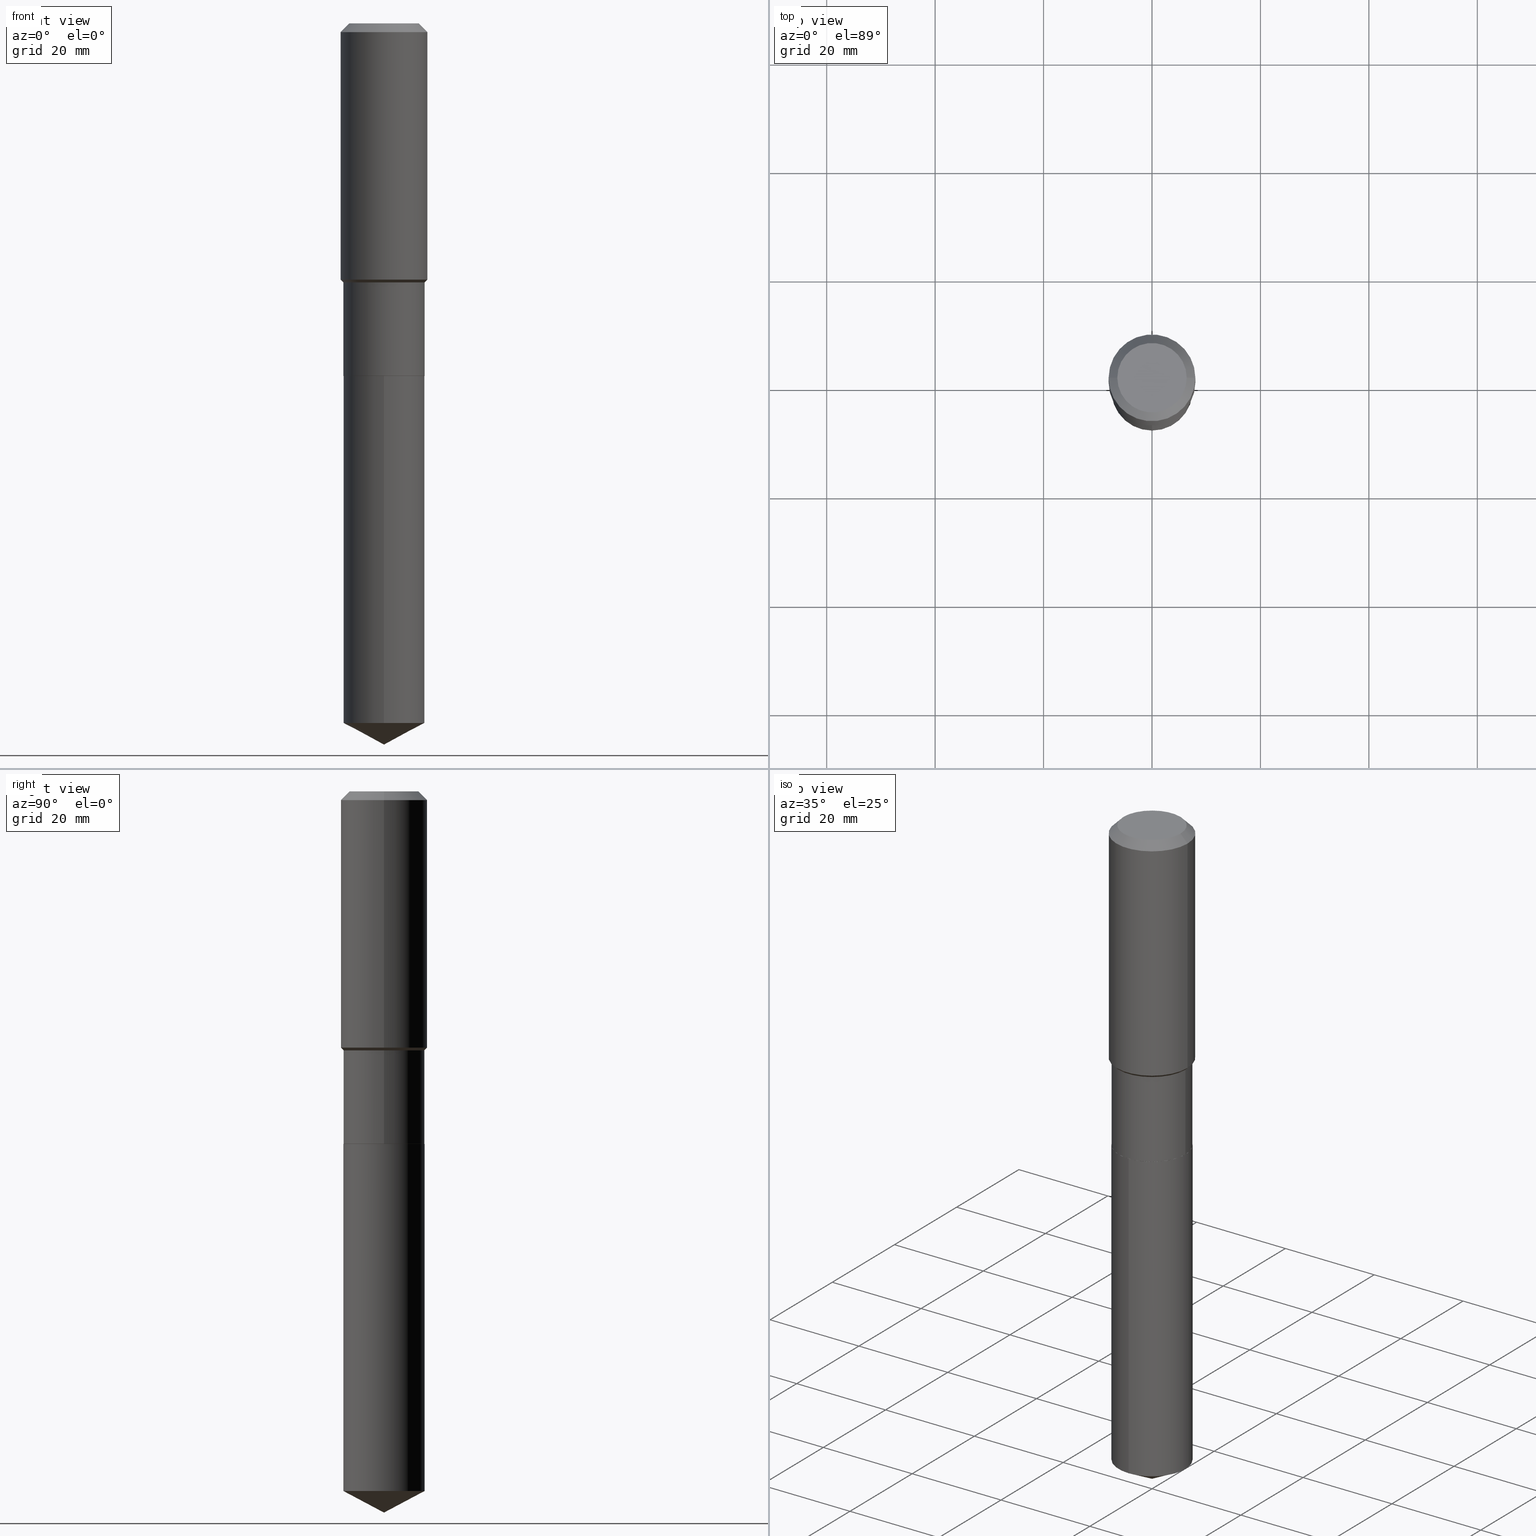
[diagram: canonical four-view strip — front | top / right | iso, engineering-drawing reading convention]
A machine part, canonical four-view strip (front | top / right | iso — engineering-drawing reading convention). The complete STEP part file that produces these views, byte-faithful:
ISO-10303-21;
HEADER;
FILE_DESCRIPTION (( 'STEP AP203' ),
    '1' );
FILE_NAME ('65099.STEP',
    '2024-04-24T20:43:30',
    ( '' ),
    ( '' ),
    'SwSTEP 2.0',
    'SolidWorks 2023',
    '' );
FILE_SCHEMA (( 'CONFIG_CONTROL_DESIGN' ));
ENDSEC;

DATA;
#1 = CARTESIAN_POINT ( 'NONE',  ( -0.2948000000000000065, -6.840369909212720342E-15, -2.559100000000000374 ) ) ;
#2 = ORIENTED_EDGE ( 'NONE', *, *, #388, .F. ) ;
#3 = DIRECTION ( 'NONE',  ( -2.445468806185136597E-29, 3.491481338843145583E-15, 1.000000000000000000 ) ) ;
#4 = VERTEX_POINT ( 'NONE', #316 ) ;
#5 = ADVANCED_BREP_SHAPE_REPRESENTATION ( '65099', ( #60, #220, #415 ), #402 ) ;
#6 = AXIS2_PLACEMENT_3D ( 'NONE', #478, #28, #325 ) ;
#7 = DIRECTION ( 'NONE',  ( -2.445468806185136877E-29, 3.491481338843145188E-15, 1.000000000000000000 ) ) ;
#8 = ORIENTED_EDGE ( 'NONE', *, *, #340, .T. ) ;
#9 = EDGE_CURVE ( 'NONE', #435, #481, #466, .T. ) ;
#10 = CARTESIAN_POINT ( 'NONE',  ( 1.540400801016026329E-30, -2.199284095337310135E-16, -0.06299000000000036514 ) ) ;
#11 = EDGE_LOOP ( 'NONE', ( #107, #312, #8, #486 ) ) ;
#12 = DIRECTION ( 'NONE',  ( 6.273719981627772387E-15, 0.8829475928589306521, 0.4694715627858840334 ) ) ;
#13 = PERSON_AND_ORGANIZATION_ROLE ( 'creator' ) ;
#14 = AXIS2_PLACEMENT_3D ( 'NONE', #136, #400, #256 ) ;
#15 = FACE_OUTER_BOUND ( 'NONE', #170, .T. ) ;
#16 = EDGE_CURVE ( 'NONE', #4, #154, #210, .T. ) ;
#17 = APPROVAL_STATUS ( 'not_yet_approved' ) ;
#18 = CARTESIAN_POINT ( 'NONE',  ( 0.2953000000000000624, -1.099537303228482880E-14, -2.558599999999999763 ) ) ;
#19 = CC_DESIGN_PERSON_AND_ORGANIZATION_ASSIGNMENT ( #54, #131, ( #105 ) ) ;
#20 = DIRECTION ( 'NONE',  ( 0.000000000000000000, 0.000000000000000000, 1.000000000000000000 ) ) ;
#21 = CARTESIAN_POINT ( 'NONE',  ( -0.2953000000000000069, 2.098232698699575898E-15, -1.452561532152273562E-29 ) ) ;
#22 = DIRECTION ( 'NONE',  ( -6.165590087286841551E-15, -0.8829475928589272105, 0.4694715627858901952 ) ) ;
#23 = AXIS2_PLACEMENT_3D ( 'NONE', #190, #193, #84 ) ;
#24 = LINE ( 'NONE', #70, #36 ) ;
#25 = ORIENTED_EDGE ( 'NONE', *, *, #128, .T. ) ;
#26 = CARTESIAN_POINT ( 'NONE',  ( 6.258199221908383945E-29, -8.935049894233496920E-15, -2.559100000000000374 ) ) ;
#27 = DATE_AND_TIME ( #58, #332 ) ;
#28 = DIRECTION ( 'NONE',  ( -2.445325234365100300E-29, 3.491686941861038348E-15, 1.000000000000000000 ) ) ;
#29 = CONICAL_SURFACE ( 'NONE', #336, 0.3149500000000000077, 0.7853981633974452814 ) ;
#30 = DIRECTION ( 'NONE',  ( 1.000000000000000000, -6.982962677686266711E-15, 4.876176775795935793E-29 ) ) ;
#31 = ORIENTED_EDGE ( 'NONE', *, *, #71, .T. ) ;
#32 = CARTESIAN_POINT ( 'NONE',  ( 0.000000000000000000, 0.000000000000000000, 0.000000000000000000 ) ) ;
#33 = EDGE_CURVE ( 'NONE', #154, #4, #72, .T. ) ;
#34 = CYLINDRICAL_SURFACE ( 'NONE', #276, 0.3149500000000001743 ) ;
#35 = ORIENTED_EDGE ( 'NONE', *, *, #310, .F. ) ;
#36 = VECTOR ( 'NONE', #441, 39.37007874015748143 ) ;
#37 = APPROVAL_PERSON_ORGANIZATION ( #390, #108, #277 ) ;
#38 = CARTESIAN_POINT ( 'NONE',  ( 0.2519600000000000173, -2.054606664725195058E-15, 3.855188123729206640E-18 ) ) ;
#39 = EDGE_CURVE ( 'NONE', #179, #227, #291, .T. ) ;
#40 = ORIENTED_EDGE ( 'NONE', *, *, #280, .F. ) ;
#41 = CC_DESIGN_SECURITY_CLASSIFICATION ( #105, ( #117 ) ) ;
#42 = DIRECTION ( 'NONE',  ( -2.445468806185136597E-29, 3.491481338843145583E-15, 1.000000000000000000 ) ) ;
#43 = ORIENTED_EDGE ( 'NONE', *, *, #205, .F. ) ;
#44 = DIRECTION ( 'NONE',  ( 1.000000000000000000, -6.982962677686264344E-15, 0.000000000000000000 ) ) ;
#45 = ORIENTED_EDGE ( 'NONE', *, *, #235, .T. ) ;
#46 = EDGE_CURVE ( 'NONE', #114, #374, #487, .T. ) ;
#47 = CONICAL_SURFACE ( 'NONE', #111, 0.2948000000000000065, 0.7853981633967653808 ) ;
#48 = FACE_OUTER_BOUND ( 'NONE', #473, .T. ) ;
#49 = ORIENTED_EDGE ( 'NONE', *, *, #46, .F. ) ;
#50 =( NAMED_UNIT ( * ) SI_UNIT ( $, .STERADIAN. ) SOLID_ANGLE_UNIT ( ) );
#51 = CARTESIAN_POINT ( 'NONE',  ( 0.2952999999999999514, -8.625704647611984399E-15, -1.879900000000000349 ) ) ;
#52 =( LENGTH_UNIT ( ) NAMED_UNIT ( * ) SI_UNIT ( $, .METRE. ) );
#53 = CARTESIAN_POINT ( 'NONE',  ( 4.549183346705900762E-29, -6.495028160582961591E-15, -1.860250000000000181 ) ) ;
#54 = PERSON_AND_ORGANIZATION ( #279, #479 ) ;
#55 = AXIS2_PLACEMENT_3D ( 'NONE', #53, #322, #468 ) ;
#56 = CARTESIAN_POINT ( 'NONE',  ( -0.2519600000000000173, 1.869391481036695286E-15, 3.855188123703182704E-18 ) ) ;
#57 = LOCAL_TIME ( 16, 43, 30.00000000000000000, #129 ) ;
#58 = CALENDAR_DATE ( 2024, 24, 4 ) ;
#59 = DIRECTION ( 'NONE',  ( -2.445468806185136597E-29, 3.491481338843145583E-15, 1.000000000000000000 ) ) ;
#60 = MANIFOLD_SOLID_BREP ( 'Body-Move/Copy2[1]', #353 ) ;
#61 = LINE ( 'NONE', #320, #103 ) ;
#62 = CC_DESIGN_PERSON_AND_ORGANIZATION_ASSIGNMENT ( #469, #122, ( #117 ) ) ;
#63 = CARTESIAN_POINT ( 'NONE',  ( 6.258199221908382824E-29, -8.935049894233495342E-15, -2.559099999999999930 ) ) ;
#64 = CIRCLE ( 'NONE', #455, 0.2519600000000000173 ) ;
#65 = CIRCLE ( 'NONE', #23, 0.2953000000000000069 ) ;
#66 = DIRECTION ( 'NONE',  ( 1.000000000000000000, -6.982962677686269077E-15, 0.000000000000000000 ) ) ;
#67 = ORIENTED_EDGE ( 'NONE', *, *, #235, .F. ) ;
#68 = APPROVAL_DATE_TIME ( #27, #425 ) ;
#69 = CYLINDRICAL_SURFACE ( 'NONE', #195, 0.2953000000000000069 ) ;
#70 = CARTESIAN_POINT ( 'NONE',  ( 2.098232698699638218E-15, 0.2952999999999910696, -2.559100000000001263 ) ) ;
#71 = EDGE_CURVE ( 'NONE', #179, #121, #427, .T. ) ;
#72 = CIRCLE ( 'NONE', #171, 0.2953000000000000069 ) ;
#73 = DIRECTION ( 'NONE',  ( 1.000000000000000000, -6.982962677686265922E-15, 0.000000000000000000 ) ) ;
#74 = ADVANCED_FACE ( 'NONE', ( #349 ), #146, .T. ) ;
#75 = DIRECTION ( 'NONE',  ( 1.000000000000000000, -6.982962677686266711E-15, 0.000000000000000000 ) ) ;
#76 = VERTEX_POINT ( 'NONE', #56 ) ;
#77 = EDGE_CURVE ( 'NONE', #259, #158, #61, .T. ) ;
#78 = CARTESIAN_POINT ( 'NONE',  ( 1.540400801016026329E-30, -2.199284095337310135E-16, -0.06299000000000036514 ) ) ;
#79 = ORIENTED_EDGE ( 'NONE', *, *, #438, .F. ) ;
#80 = AXIS2_PLACEMENT_3D ( 'NONE', #183, #176, #174 ) ;
#81 = AXIS2_PLACEMENT_3D ( 'NONE', #338, #306, #410 ) ;
#82 = DIRECTION ( 'NONE',  ( 2.445468806185136597E-29, -3.491481338843145583E-15, -1.000000000000000000 ) ) ;
#83 = EDGE_LOOP ( 'NONE', ( #462, #149, #161 ) ) ;
#84 = DIRECTION ( 'NONE',  ( -6.982962677686266711E-15, -1.000000000000000000, 3.700437512582815297E-15 ) ) ;
#85 = EDGE_LOOP ( 'NONE', ( #490, #222, #216, #151 ) ) ;
#86 = ADVANCED_FACE ( 'NONE', ( #130 ), #470, .F. ) ;
#87 = DIRECTION ( 'NONE',  ( 1.000000000000000000, -6.982962677686266711E-15, 4.876115136096691995E-29 ) ) ;
#88 = EDGE_LOOP ( 'NONE', ( #474, #191, #484, #314 ) ) ;
#89 = AXIS2_PLACEMENT_3D ( 'NONE', #120, #343, #153 ) ;
#90 = DIRECTION ( 'NONE',  ( 1.000000000000000000, -6.982962677686266711E-15, 0.000000000000000000 ) ) ;
#91 = APPROVAL_DATE_TIME ( #421, #108 ) ;
#92 = DIRECTION ( 'NONE',  ( -0.7071067811865453523, 2.468850131082234184E-15, -0.7071067811865496822 ) ) ;
#93 =( NAMED_UNIT ( * ) PLANE_ANGLE_UNIT ( ) SI_UNIT ( $, .RADIAN. ) );
#94 = DIRECTION ( 'NONE',  ( -2.445325234365100300E-29, 3.491686941861038348E-15, 1.000000000000000000 ) ) ;
#95 = CALENDAR_DATE ( 2024, 24, 4 ) ;
#96 = AXIS2_PLACEMENT_3D ( 'NONE', #248, #97, #134 ) ;
#97 = DIRECTION ( 'NONE',  ( -2.445325234365100300E-29, 3.491686941861038348E-15, 1.000000000000000000 ) ) ;
#98 = PERSON_AND_ORGANIZATION ( #279, #479 ) ;
#99 = DIRECTION ( 'NONE',  ( -2.445468806185136877E-29, 3.491481338843145188E-15, 1.000000000000000000 ) ) ;
#100 = EDGE_CURVE ( 'NONE', #450, #121, #265, .T. ) ;
#101 = FACE_OUTER_BOUND ( 'NONE', #458, .T. ) ;
#102 = DIRECTION ( 'NONE',  ( -2.445468806185136597E-29, 3.491481338843145583E-15, 1.000000000000000000 ) ) ;
#103 = VECTOR ( 'NONE', #207, 39.37007874015748143 ) ;
#104 = VECTOR ( 'NONE', #341, 39.37007874015748143 ) ;
#105 = SECURITY_CLASSIFICATION ( '', '', #313 ) ;
#106 = CARTESIAN_POINT ( 'NONE',  ( 0.2948000000000000065, -1.099362729161540808E-14, -2.559100000000000374 ) ) ;
#107 = ORIENTED_EDGE ( 'NONE', *, *, #471, .F. ) ;
#108 = APPROVAL ( #348, 'UNSPECIFIED' ) ;
#109 = CARTESIAN_POINT ( 'NONE',  ( 6.258199221908383945E-29, -8.935049894233496920E-15, -2.559100000000000374 ) ) ;
#110 = CARTESIAN_POINT ( 'NONE',  ( 6.258199221908382824E-29, -8.935049894233495342E-15, -2.559099999999999930 ) ) ;
#111 = AXIS2_PLACEMENT_3D ( 'NONE', #255, #404, #366 ) ;
#112 = CARTESIAN_POINT ( 'NONE',  ( 4.597236808747439228E-29, -6.563635768891230231E-15, -1.879900000000000349 ) ) ;
#113 = LINE ( 'NONE', #228, #354 ) ;
#114 = VERTEX_POINT ( 'NONE', #51 ) ;
#115 = CARTESIAN_POINT ( 'NONE',  ( 4.549183346705900762E-29, -6.495028160582961591E-15, -1.860250000000000181 ) ) ;
#116 = EDGE_LOOP ( 'NONE', ( #123, #219 ) ) ;
#117 = PRODUCT_DEFINITION_FORMATION_WITH_SPECIFIED_SOURCE ( 'ANY', '', #242, .NOT_KNOWN. ) ;
#118 = FACE_OUTER_BOUND ( 'NONE', #83, .T. ) ;
#119 = ORIENTED_EDGE ( 'NONE', *, *, #16, .T. ) ;
#120 = CARTESIAN_POINT ( 'NONE',  ( 1.242062961135545756E-28, -1.773440198800382696E-14, -5.079186204830366869 ) ) ;
#121 = VERTEX_POINT ( 'NONE', #391 ) ;
#122 = PERSON_AND_ORGANIZATION_ROLE ( 'design_supplier' ) ;
#123 = ORIENTED_EDGE ( 'NONE', *, *, #477, .T. ) ;
#124 = EDGE_CURVE ( 'NONE', #435, #169, #351, .T. ) ;
#125 = AXIS2_PLACEMENT_3D ( 'NONE', #230, #419, #87 ) ;
#126 = APPLICATION_PROTOCOL_DEFINITION ( 'international standard', 'config_control_design', 1994, #249 ) ;
#127 = CARTESIAN_POINT ( 'NONE',  ( -0.3149500000000000077, 1.979355685803558833E-15, -0.06299000000000036514 ) ) ;
#128 = EDGE_CURVE ( 'NONE', #76, #121, #318, .T. ) ;
#129 = COORDINATED_UNIVERSAL_TIME_OFFSET ( 5, 0, .BEHIND. ) ;
#130 = FACE_OUTER_BOUND ( 'NONE', #116, .T. ) ;
#131 = PERSON_AND_ORGANIZATION_ROLE ( 'classification_officer' ) ;
#132 = LINE ( 'NONE', #21, #155 ) ;
#133 = CIRCLE ( 'NONE', #368, 0.2948000000000000065 ) ;
#134 = DIRECTION ( 'NONE',  ( -6.982962677686266711E-15, -1.000000000000000000, 3.700437512582815297E-15 ) ) ;
#135 = DIRECTION ( 'NONE',  ( -2.445325234365100300E-29, 3.491686941861038348E-15, 1.000000000000000000 ) ) ;
#136 = CARTESIAN_POINT ( 'NONE',  ( 0.000000000000000000, 0.000000000000000000, 0.000000000000000000 ) ) ;
#137 = ORIENTED_EDGE ( 'NONE', *, *, #167, .T. ) ;
#138 = DIRECTION ( 'NONE',  ( -2.445468806185136597E-29, 3.491481338843145583E-15, 1.000000000000000000 ) ) ;
#139 = VECTOR ( 'NONE', #12, 39.37007874015748854 ) ;
#140 = FACE_OUTER_BOUND ( 'NONE', #181, .T. ) ;
#141 = DIRECTION ( 'NONE',  ( -2.445468806185136597E-29, 3.491481338843145583E-15, 1.000000000000000000 ) ) ;
#142 = PRODUCT_DEFINITION_SHAPE ( 'NONE', 'NONE',  #397 ) ;
#143 = CARTESIAN_POINT ( 'NONE',  ( 2.098232698699700538E-15, 0.2952999999999824099, -5.079186204830368645 ) ) ;
#144 = EDGE_CURVE ( 'NONE', #344, #450, #240, .T. ) ;
#145 = ORIENTED_EDGE ( 'NONE', *, *, #272, .T. ) ;
#146 = CONICAL_SURFACE ( 'NONE', #422, 0.2952999999999999514, 0.7853981633974509435 ) ;
#147 = VECTOR ( 'NONE', #148, 39.37007874015748143 ) ;
#148 = DIRECTION ( 'NONE',  ( -0.7071067811860646257, 7.493145998868609200E-15, 0.7071067811870304087 ) ) ;
#149 = ORIENTED_EDGE ( 'NONE', *, *, #124, .T. ) ;
#150 = FACE_OUTER_BOUND ( 'NONE', #88, .T. ) ;
#151 = ORIENTED_EDGE ( 'NONE', *, *, #340, .F. ) ;
#152 = ADVANCED_FACE ( 'NONE', ( #15 ), #165, .T. ) ;
#153 = DIRECTION ( 'NONE',  ( -6.982962677686266711E-15, -1.000000000000000000, 3.700437512582815297E-15 ) ) ;
#154 = VERTEX_POINT ( 'NONE', #355 ) ;
#155 = VECTOR ( 'NONE', #284, 39.37007874015748143 ) ;
#156 = CIRCLE ( 'NONE', #394, 0.3149500000000000077 ) ;
#157 = CARTESIAN_POINT ( 'NONE',  ( -0.2952999999999999514, -5.650237262528075742E-15, -1.879900000000000349 ) ) ;
#158 = VERTEX_POINT ( 'NONE', #18 ) ;
#159 = CC_DESIGN_APPROVAL ( #425, ( #105 ) ) ;
#160 = DATE_AND_TIME ( #239, #57 ) ;
#161 = ORIENTED_EDGE ( 'NONE', *, *, #475, .F. ) ;
#162 = CARTESIAN_POINT ( 'NONE',  ( -4.713871149261284790E-47, 6.730158695841843144E-33, 1.927594061857935750E-18 ) ) ;
#163 = EDGE_CURVE ( 'NONE', #363, #374, #132, .T. ) ;
#164 = COORDINATED_UNIVERSAL_TIME_OFFSET ( 5, 0, .BEHIND. ) ;
#165 = CYLINDRICAL_SURFACE ( 'NONE', #345, 0.2953000000000000069 ) ;
#166 = APPROVAL_PERSON_ORGANIZATION ( #398, #214, #429 ) ;
#167 = EDGE_CURVE ( 'NONE', #158, #363, #201, .T. ) ;
#168 = CALENDAR_DATE ( 2024, 24, 4 ) ;
#169 = VERTEX_POINT ( 'NONE', #143 ) ;
#170 = EDGE_LOOP ( 'NONE', ( #418, #339, #229, #2 ) ) ;
#171 = AXIS2_PLACEMENT_3D ( 'NONE', #287, #135, #399 ) ;
#172 = ORIENTED_EDGE ( 'NONE', *, *, #451, .F. ) ;
#173 = CARTESIAN_POINT ( 'NONE',  ( -0.3149500000000002298, -4.257173814306524817E-15, -1.860250000000000181 ) ) ;
#174 = DIRECTION ( 'NONE',  ( 1.000000000000000000, -6.982962677686269077E-15, 0.000000000000000000 ) ) ;
#175 = ORIENTED_EDGE ( 'NONE', *, *, #124, .F. ) ;
#176 = DIRECTION ( 'NONE',  ( -2.445468806185136597E-29, 3.491481338843145583E-15, 1.000000000000000000 ) ) ;
#177 = AXIS2_PLACEMENT_3D ( 'NONE', #430, #59, #66 ) ;
#178 = CC_DESIGN_APPROVAL ( #108, ( #397 ) ) ;
#179 = VERTEX_POINT ( 'NONE', #173 ) ;
#180 = DIRECTION ( 'NONE',  ( 2.445325234365099459E-29, -3.491686941861038743E-15, -1.000000000000000000 ) ) ;
#181 = EDGE_LOOP ( 'NONE', ( #137, #200, #49, #172 ) ) ;
#182 = ADVANCED_FACE ( 'NONE', ( #362 ), #252, .T. ) ;
#183 = CARTESIAN_POINT ( 'NONE',  ( 6.256976487505290023E-29, -8.933304153564073050E-15, -2.558599999999999763 ) ) ;
#184 = LINE ( 'NONE', #382, #187 ) ;
#185 = EDGE_LOOP ( 'NONE', ( #175, #370, #327 ) ) ;
#186 = CONICAL_SURFACE ( 'NONE', #212, 0.2952999999999999514, 0.7853981633974509435 ) ;
#187 = VECTOR ( 'NONE', #373, 39.37007874015748143 ) ;
#188 = LINE ( 'NONE', #1, #147 ) ;
#189 = EDGE_LOOP ( 'NONE', ( #420, #305, #385, #412 ) ) ;
#190 = CARTESIAN_POINT ( 'NONE',  ( 1.242062961135545756E-28, -1.773440198800382696E-14, -5.079186204830366869 ) ) ;
#191 = ORIENTED_EDGE ( 'NONE', *, *, #144, .T. ) ;
#192 = EDGE_CURVE ( 'NONE', #344, #76, #64, .T. ) ;
#193 = DIRECTION ( 'NONE',  ( -2.445325234365100300E-29, 3.491686941861038348E-15, 1.000000000000000000 ) ) ;
#194 = ORIENTED_EDGE ( 'NONE', *, *, #272, .F. ) ;
#195 = AXIS2_PLACEMENT_3D ( 'NONE', #217, #334, #485 ) ;
#196 = ORIENTED_EDGE ( 'NONE', *, *, #392, .F. ) ;
#197 = CC_DESIGN_DATE_AND_TIME_ASSIGNMENT ( #160, #199, ( #397 ) ) ;
#198 = CARTESIAN_POINT ( 'NONE',  ( 1.280495326505732203E-28, -1.828211884760659046E-14, -5.236200000000000188 ) ) ;
#199 = DATE_TIME_ROLE ( 'creation_date' ) ;
#200 = ORIENTED_EDGE ( 'NONE', *, *, #163, .T. ) ;
#201 = CIRCLE ( 'NONE', #177, 0.2953000000000000624 ) ;
#202 = CONICAL_SURFACE ( 'NONE', #437, 0.3149500000000000077, 0.7853981633974452814 ) ;
#203 = APPROVAL_STATUS ( 'not_yet_approved' ) ;
#204 = CARTESIAN_POINT ( 'NONE',  ( 6.258199221908382824E-29, -8.935049894233495342E-15, -2.559099999999999930 ) ) ;
#205 = EDGE_CURVE ( 'NONE', #169, #154, #24, .T. ) ;
#206 = PERSON_AND_ORGANIZATION ( #279, #479 ) ;
#207 = DIRECTION ( 'NONE',  ( 0.7071067811860646257, -2.468850131077198884E-15, 0.7071067811870304087 ) ) ;
#208 = COORDINATED_UNIVERSAL_TIME_OFFSET ( 5, 0, .BEHIND. ) ;
#209 = DIRECTION ( 'NONE',  ( -2.445468806185136597E-29, 3.491481338843145583E-15, 1.000000000000000000 ) ) ;
#210 = CIRCLE ( 'NONE', #96, 0.2953000000000000069 ) ;
#211 = ADVANCED_FACE ( 'NONE', ( #439 ), #483, .F. ) ;
#212 = AXIS2_PLACEMENT_3D ( 'NONE', #433, #102, #480 ) ;
#213 = LINE ( 'NONE', #434, #285 ) ;
#214 = APPROVAL ( #203, 'UNSPECIFIED' ) ;
#215 = FACE_OUTER_BOUND ( 'NONE', #383, .T. ) ;
#216 = ORIENTED_EDGE ( 'NONE', *, *, #365, .F. ) ;
#217 = CARTESIAN_POINT ( 'NONE',  ( 0.000000000000000000, 0.000000000000000000, 0.000000000000000000 ) ) ;
#218 = DIRECTION ( 'NONE',  ( -2.445468806185136597E-29, 3.491481338843145583E-15, 1.000000000000000000 ) ) ;
#219 = ORIENTED_EDGE ( 'NONE', *, *, #192, .T. ) ;
#220 = MANIFOLD_SOLID_BREP ( 'Body-Move/Copy2[2]', #384 ) ;
#221 = CYLINDRICAL_SURFACE ( 'NONE', #393, 0.2953000000000000069 ) ;
#222 = ORIENTED_EDGE ( 'NONE', *, *, #471, .T. ) ;
#223 = CARTESIAN_POINT ( 'NONE',  ( -0.2948000000000000065, -6.837720682038608352E-15, -2.559100000000000374 ) ) ;
#224 = ORIENTED_EDGE ( 'NONE', *, *, #451, .T. ) ;
#225 = DESIGN_CONTEXT ( 'detailed design', #324, 'design' ) ;
#226 = DIRECTION ( 'NONE',  ( -2.445325234365100300E-29, 3.491686941861038743E-15, 1.000000000000000000 ) ) ;
#227 = VERTEX_POINT ( 'NONE', #250 ) ;
#228 = CARTESIAN_POINT ( 'NONE',  ( 0.2953000000000000069, -2.062068878720754563E-15, 1.439935001892539937E-29 ) ) ;
#229 = ORIENTED_EDGE ( 'NONE', *, *, #16, .F. ) ;
#230 = CARTESIAN_POINT ( 'NONE',  ( -9.427742298522569579E-47, 1.346031739168368629E-32, 3.855188123715871501E-18 ) ) ;
#231 = EDGE_LOOP ( 'NONE', ( #35, #67 ) ) ;
#232 = CARTESIAN_POINT ( 'NONE',  ( -2.062068878720631106E-15, -0.2953000000000178260, -5.079186204830365980 ) ) ;
#233 = ORIENTED_EDGE ( 'NONE', *, *, #144, .F. ) ;
#234 = AXIS2_PLACEMENT_3D ( 'NONE', #245, #289, #282 ) ;
#235 = EDGE_CURVE ( 'NONE', #380, #259, #133, .T. ) ;
#236 = COORDINATED_UNIVERSAL_TIME_OFFSET ( 5, 0, .BEHIND. ) ;
#237 = DIRECTION ( 'NONE',  ( 2.438088387897960049E-29, -3.491481338843145188E-15, -1.000000000000000000 ) ) ;
#238 = APPROVAL_PERSON_ORGANIZATION ( #281, #425, #244 ) ;
#239 = CALENDAR_DATE ( 2024, 24, 4 ) ;
#240 = LINE ( 'NONE', #356, #465 ) ;
#241 = CALENDAR_DATE ( 2024, 24, 4 ) ;
#242 = PRODUCT ( '65099', '65099', '', ( #426 ) ) ;
#243 = DIRECTION ( 'NONE',  ( -6.982962677686266711E-15, -1.000000000000000000, 3.700437512582815297E-15 ) ) ;
#244 = APPROVAL_ROLE ( '' ) ;
#245 = CARTESIAN_POINT ( 'NONE',  ( 4.597236808747439228E-29, -6.563635768891230231E-15, -1.879900000000000349 ) ) ;
#246 = ADVANCED_FACE ( 'NONE', ( #476 ), #408, .T. ) ;
#247 = PERSON_AND_ORGANIZATION_ROLE ( 'creator' ) ;
#248 = CARTESIAN_POINT ( 'NONE',  ( 6.258199221908382824E-29, -8.935049894233495342E-15, -2.559099999999999930 ) ) ;
#249 = APPLICATION_CONTEXT ( 'configuration controlled 3d designs of mechanical parts and assemblies' ) ;
#250 = CARTESIAN_POINT ( 'NONE',  ( 0.3149500000000002298, -8.694312255920253039E-15, -1.860250000000000181 ) ) ;
#251 = ADVANCED_FACE ( 'NONE', ( #215 ), #257, .T. ) ;
#252 = CONICAL_SURFACE ( 'NONE', #275, 0.2948000000000000065, 0.7853981633967653808 ) ;
#253 = CARTESIAN_POINT ( 'NONE',  ( -9.427742298522569579E-47, 1.346031739168368629E-32, 3.855188123715871501E-18 ) ) ;
#254 = ADVANCED_FACE ( 'NONE', ( #407 ), #69, .T. ) ;
#255 = CARTESIAN_POINT ( 'NONE',  ( 6.258199221908383945E-29, -8.935049894233496920E-15, -2.559100000000000374 ) ) ;
#256 = DIRECTION ( 'NONE',  ( 1.000000000000000000, -6.982962677686265922E-15, 4.876176775795935232E-29 ) ) ;
#257 = CYLINDRICAL_SURFACE ( 'NONE', #14, 0.3149500000000001743 ) ;
#258 = CARTESIAN_POINT ( 'NONE',  ( 0.000000000000000000, 0.000000000000000000, 0.000000000000000000 ) ) ;
#259 = VERTEX_POINT ( 'NONE', #106 ) ;
#260 = DIRECTION ( 'NONE',  ( -2.445468806185136597E-29, 3.491481338843145583E-15, 1.000000000000000000 ) ) ;
#261 = ORIENTED_EDGE ( 'NONE', *, *, #365, .T. ) ;
#262 = UNCERTAINTY_MEASURE_WITH_UNIT (LENGTH_MEASURE( 1.000000000000000082E-05 ), #321, 'distance_accuracy_value', 'NONE');
#263 = FACE_OUTER_BOUND ( 'NONE', #231, .T. ) ;
#264 = EDGE_LOOP ( 'NONE', ( #271, #145, #224, #196 ) ) ;
#265 = CIRCLE ( 'NONE', #308, 0.3149500000000000077 ) ;
#266 = LOCAL_TIME ( 16, 43, 30.00000000000000000, #208 ) ;
#267 = LINE ( 'NONE', #379, #104 ) ;
#268 = ADVANCED_FACE ( 'NONE', ( #409 ), #221, .T. ) ;
#269 = ORIENTED_EDGE ( 'NONE', *, *, #477, .F. ) ;
#270 = DIRECTION ( 'NONE',  ( 1.000000000000000000, -6.982962677686265922E-15, 4.876176775795935232E-29 ) ) ;
#271 = ORIENTED_EDGE ( 'NONE', *, *, #163, .F. ) ;
#272 = EDGE_CURVE ( 'NONE', #363, #158, #401, .T. ) ;
#273 = DATE_TIME_ROLE ( 'classification_date' ) ;
#274 = EDGE_LOOP ( 'NONE', ( #119, #302 ) ) ;
#275 = AXIS2_PLACEMENT_3D ( 'NONE', #26, #138, #443 ) ;
#276 = AXIS2_PLACEMENT_3D ( 'NONE', #258, #42, #270 ) ;
#277 = APPROVAL_ROLE ( '' ) ;
#278 = CARTESIAN_POINT ( 'NONE',  ( 4.597236808747439228E-29, -6.563635768891230231E-15, -1.879900000000000349 ) ) ;
#279 = PERSON ( 'UNSPECIFIED', 'UNSPECIFIED', 'UNSPECIFIED', ('UNSPECIFIED'), ('UNSPECIFIED'), ('UNSPECIFIED') ) ;
#280 = EDGE_CURVE ( 'NONE', #227, #450, #213, .T. ) ;
#281 = PERSON_AND_ORGANIZATION ( #279, #479 ) ;
#282 = DIRECTION ( 'NONE',  ( 1.000000000000000000, -6.982962677686265133E-15, 0.000000000000000000 ) ) ;
#283 = ADVANCED_FACE ( 'NONE', ( #101 ), #47, .T. ) ;
#284 = DIRECTION ( 'NONE',  ( -2.445468806185136877E-29, 3.491481338843145188E-15, 1.000000000000000000 ) ) ;
#285 = VECTOR ( 'NONE', #326, 39.37007874015748143 ) ;
#286 = DIRECTION ( 'NONE',  ( 1.000000000000000000, 0.000000000000000000, 0.000000000000000000 ) ) ;
#287 = CARTESIAN_POINT ( 'NONE',  ( 6.258199221908382824E-29, -8.935049894233495342E-15, -2.559099999999999930 ) ) ;
#288 = SHAPE_DEFINITION_REPRESENTATION ( #142, #5 ) ;
#289 = DIRECTION ( 'NONE',  ( -2.445468806185136597E-29, 3.491481338843145583E-15, 1.000000000000000000 ) ) ;
#290 = DIRECTION ( 'NONE',  ( -6.982962677686266711E-15, -1.000000000000000000, 3.700437512582815297E-15 ) ) ;
#291 = CIRCLE ( 'NONE', #55, 0.3149500000000002298 ) ;
#292 = AXIS2_PLACEMENT_3D ( 'NONE', #112, #376, #489 ) ;
#293 = DIRECTION ( 'NONE',  ( 6.982962677686265922E-15, 1.000000000000000000, -3.491686941861038743E-15 ) ) ;
#294 = LOCAL_TIME ( 16, 43, 30.00000000000000000, #164 ) ;
#295 = ADVANCED_FACE ( 'NONE', ( #331 ), #186, .T. ) ;
#296 = DIRECTION ( 'NONE',  ( -2.445468806185136597E-29, 3.491481338843145583E-15, 1.000000000000000000 ) ) ;
#297 = DIRECTION ( 'NONE',  ( -2.445468806185136597E-29, 3.491481338843145583E-15, 1.000000000000000000 ) ) ;
#298 = CARTESIAN_POINT ( 'NONE',  ( 1.280421199218253984E-28, -1.828317116497276678E-14, -5.236200000000000188 ) ) ;
#299 = AXIS2_PLACEMENT_3D ( 'NONE', #449, #456, #447 ) ;
#300 = ORIENTED_EDGE ( 'NONE', *, *, #438, .T. ) ;
#301 = PLANE ( 'NONE',  #299 ) ;
#302 = ORIENTED_EDGE ( 'NONE', *, *, #33, .T. ) ;
#303 = CC_DESIGN_PERSON_AND_ORGANIZATION_ASSIGNMENT ( #98, #467, ( #242 ) ) ;
#304 = CARTESIAN_POINT ( 'NONE',  ( -2.062068878720691848E-15, -0.2953000000000089442, -2.559099999999999042 ) ) ;
#305 = ORIENTED_EDGE ( 'NONE', *, *, #39, .T. ) ;
#306 = DIRECTION ( 'NONE',  ( -2.445325234365100300E-29, 3.491686941861038348E-15, 1.000000000000000000 ) ) ;
#307 = ORIENTED_EDGE ( 'NONE', *, *, #357, .T. ) ;
#308 = AXIS2_PLACEMENT_3D ( 'NONE', #323, #209, #90 ) ;
#309 = CIRCLE ( 'NONE', #292, 0.2952999999999999514 ) ;
#310 = EDGE_CURVE ( 'NONE', #259, #380, #386, .T. ) ;
#311 = CARTESIAN_POINT ( 'NONE',  ( 1.540400801016026329E-30, -2.199284095337310135E-16, -0.06299000000000036514 ) ) ;
#312 = ORIENTED_EDGE ( 'NONE', *, *, #392, .T. ) ;
#313 = SECURITY_CLASSIFICATION_LEVEL ( 'unclassified' ) ;
#314 = ORIENTED_EDGE ( 'NONE', *, *, #128, .F. ) ;
#315 = APPLICATION_PROTOCOL_DEFINITION ( 'international standard', 'config_control_design', 1994, #324 ) ;
#316 = CARTESIAN_POINT ( 'NONE',  ( -2.062068878720691848E-15, -0.2953000000000089442, -2.559099999999999042 ) ) ;
#317 = VECTOR ( 'NONE', #226, 39.37007874015748143 ) ;
#318 = LINE ( 'NONE', #127, #436 ) ;
#319 = APPROVAL_DATE_TIME ( #350, #214 ) ;
#320 = CARTESIAN_POINT ( 'NONE',  ( 0.2948000000000000065, -1.099362729161540808E-14, -2.559100000000000374 ) ) ;
#321 =( CONVERSION_BASED_UNIT ( 'INCH', #464 ) LENGTH_UNIT ( ) NAMED_UNIT ( #406 ) );
#322 = DIRECTION ( 'NONE',  ( -2.445468806185136597E-29, 3.491481338843145583E-15, 1.000000000000000000 ) ) ;
#323 = CARTESIAN_POINT ( 'NONE',  ( 1.540400801016026329E-30, -2.199284095337310135E-16, -0.06299000000000036514 ) ) ;
#324 = APPLICATION_CONTEXT ( 'configuration controlled 3d designs of mechanical parts and assemblies' ) ;
#325 = DIRECTION ( 'NONE',  ( -6.982962677686265922E-15, -1.000000000000000000, 3.541896320645543908E-15 ) ) ;
#326 = DIRECTION ( 'NONE',  ( -2.445468806185136877E-29, 3.491481338843145188E-15, 1.000000000000000000 ) ) ;
#327 = ORIENTED_EDGE ( 'NONE', *, *, #440, .F. ) ;
#328 = ADVANCED_FACE ( 'NONE', ( #140 ), #371, .T. ) ;
#329 = AXIS2_PLACEMENT_3D ( 'NONE', #110, #180, #293 ) ;
#330 = CIRCLE ( 'NONE', #125, 0.2519600000000000173 ) ;
#331 = FACE_OUTER_BOUND ( 'NONE', #85, .T. ) ;
#332 = LOCAL_TIME ( 16, 43, 30.00000000000000000, #395 ) ;
#333 = DIRECTION ( 'NONE',  ( 1.000000000000000000, -6.982962677686266711E-15, 4.876115136096691995E-29 ) ) ;
#334 = DIRECTION ( 'NONE',  ( -2.445468806185136597E-29, 3.491481338843145583E-15, 1.000000000000000000 ) ) ;
#335 = DIRECTION ( 'NONE',  ( -1.000000000000000000, 6.982962677686266711E-15, 0.000000000000000000 ) ) ;
#336 = AXIS2_PLACEMENT_3D ( 'NONE', #311, #82, #459 ) ;
#337 = EDGE_LOOP ( 'NONE', ( #79, #45, #378, #194 ) ) ;
#338 = CARTESIAN_POINT ( 'NONE',  ( -8.346806761542085360E-28, 1.191853448307590878E-13, 34.13387874015747769 ) ) ;
#339 = ORIENTED_EDGE ( 'NONE', *, *, #205, .T. ) ;
#340 = EDGE_CURVE ( 'NONE', #114, #227, #184, .T. ) ;
#341 = DIRECTION ( 'NONE',  ( -0.7071067811865493491, 7.493145998870360471E-15, 0.7071067811865456854 ) ) ;
#342 = ORIENTED_EDGE ( 'NONE', *, *, #77, .F. ) ;
#343 = DIRECTION ( 'NONE',  ( -2.445325234365100300E-29, 3.491686941861038348E-15, 1.000000000000000000 ) ) ;
#344 = VERTEX_POINT ( 'NONE', #38 ) ;
#345 = AXIS2_PLACEMENT_3D ( 'NONE', #204, #94, #243 ) ;
#346 = CARTESIAN_POINT ( 'NONE',  ( -0.2953000000000000624, -5.650237262528074953E-15, -2.558599999999999763 ) ) ;
#347 = ORIENTED_EDGE ( 'NONE', *, *, #388, .T. ) ;
#348 = APPROVAL_STATUS ( 'not_yet_approved' ) ;
#349 = FACE_OUTER_BOUND ( 'NONE', #11, .T. ) ;
#350 = DATE_AND_TIME ( #241, #448 ) ;
#351 = LINE ( 'NONE', #198, #139 ) ;
#352 = ADVANCED_FACE ( 'NONE', ( #150 ), #202, .T. ) ;
#353 = CLOSED_SHELL ( 'NONE', ( #152, #413, #246, #268, #211 ) ) ;
#354 = VECTOR ( 'NONE', #7, 39.37007874015748143 ) ;
#355 = CARTESIAN_POINT ( 'NONE',  ( 2.098232698699700538E-15, 0.2952999999999910696, -2.559100000000001263 ) ) ;
#356 = CARTESIAN_POINT ( 'NONE',  ( 0.3149500000000000077, -2.380642253931875190E-15, -0.06299000000000036514 ) ) ;
#357 = EDGE_CURVE ( 'NONE', #121, #450, #156, .T. ) ;
#358 = PERSON_AND_ORGANIZATION ( #279, #479 ) ;
#359 = CARTESIAN_POINT ( 'NONE',  ( 1.280421199218253984E-28, -1.828317116497276678E-14, -5.236200000000000188 ) ) ;
#360 = VECTOR ( 'NONE', #99, 39.37007874015748143 ) ;
#361 = CIRCLE ( 'NONE', #89, 0.2953000000000000069 ) ;
#362 = FACE_OUTER_BOUND ( 'NONE', #337, .T. ) ;
#363 = VERTEX_POINT ( 'NONE', #346 ) ;
#364 = DIRECTION ( 'NONE',  ( -2.445325234365100300E-29, 3.491686941861038348E-15, 1.000000000000000000 ) ) ;
#365 = EDGE_CURVE ( 'NONE', #227, #179, #446, .T. ) ;
#366 = DIRECTION ( 'NONE',  ( 1.000000000000000000, -6.982962677686265922E-15, 0.000000000000000000 ) ) ;
#367 = ADVANCED_FACE ( 'NONE', ( #411 ), #34, .T. ) ;
#368 = AXIS2_PLACEMENT_3D ( 'NONE', #109, #141, #403 ) ;
#369 = CARTESIAN_POINT ( 'NONE',  ( 6.258199221908383945E-29, -8.935049894233496920E-15, -2.559100000000000374 ) ) ;
#370 = ORIENTED_EDGE ( 'NONE', *, *, #9, .T. ) ;
#371 = CYLINDRICAL_SURFACE ( 'NONE', #377, 0.2953000000000000069 ) ;
#372 = CC_DESIGN_DATE_AND_TIME_ASSIGNMENT ( #461, #273, ( #105 ) ) ;
#373 = DIRECTION ( 'NONE',  ( 0.7071067811865493491, -2.468850131082276388E-15, 0.7071067811865456854 ) ) ;
#374 = VERTEX_POINT ( 'NONE', #157 ) ;
#375 = AXIS2_PLACEMENT_3D ( 'NONE', #162, #237, #428 ) ;
#376 = DIRECTION ( 'NONE',  ( -2.445468806185136597E-29, 3.491481338843145583E-15, 1.000000000000000000 ) ) ;
#377 = AXIS2_PLACEMENT_3D ( 'NONE', #32, #296, #30 ) ;
#378 = ORIENTED_EDGE ( 'NONE', *, *, #77, .T. ) ;
#379 = CARTESIAN_POINT ( 'NONE',  ( -0.2952999999999999514, -4.465403070191654333E-15, -1.879900000000000349 ) ) ;
#380 = VERTEX_POINT ( 'NONE', #223 ) ;
#381 = ADVANCED_FACE ( 'NONE', ( #48 ), #29, .T. ) ;
#382 = CARTESIAN_POINT ( 'NONE',  ( 0.2952999999999999514, -8.625704647611984399E-15, -1.879900000000000349 ) ) ;
#383 = EDGE_LOOP ( 'NONE', ( #261, #31, #442, #40 ) ) ;
#384 = CLOSED_SHELL ( 'NONE', ( #283, #352, #251, #295, #328, #254, #74, #367, #381, #86, #444, #182 ) ) ;
#385 = ORIENTED_EDGE ( 'NONE', *, *, #280, .T. ) ;
#386 = CIRCLE ( 'NONE', #424, 0.2948000000000000065 ) ;
#387 = DIRECTION ( 'NONE',  ( 1.000000000000000000, -6.982962677686265133E-15, 0.000000000000000000 ) ) ;
#388 = EDGE_CURVE ( 'NONE', #481, #4, #414, .T. ) ;
#389 = DIRECTION ( 'NONE',  ( -2.445468806185136597E-29, 3.491481338843145583E-15, 1.000000000000000000 ) ) ;
#390 = PERSON_AND_ORGANIZATION ( #279, #479 ) ;
#391 = CARTESIAN_POINT ( 'NONE',  ( -0.3149500000000000077, -1.119623938781909738E-15, -0.06299000000000036514 ) ) ;
#392 = EDGE_CURVE ( 'NONE', #374, #114, #309, .T. ) ;
#393 = AXIS2_PLACEMENT_3D ( 'NONE', #63, #364, #290 ) ;
#394 = AXIS2_PLACEMENT_3D ( 'NONE', #10, #3, #75 ) ;
#395 = COORDINATED_UNIVERSAL_TIME_OFFSET ( 5, 0, .BEHIND. ) ;
#396 = DIRECTION ( 'NONE',  ( 0.7071067811865453523, -7.319954787623248157E-15, -0.7071067811865496822 ) ) ;
#397 = PRODUCT_DEFINITION ( 'UNKNOWN', '', #117, #225 ) ;
#398 = PERSON_AND_ORGANIZATION ( #279, #479 ) ;
#399 = DIRECTION ( 'NONE',  ( -6.982962677686266711E-15, -1.000000000000000000, 3.700437512582815297E-15 ) ) ;
#400 = DIRECTION ( 'NONE',  ( -2.445468806185136597E-29, 3.491481338843145583E-15, 1.000000000000000000 ) ) ;
#401 = CIRCLE ( 'NONE', #80, 0.2953000000000000624 ) ;
#402 =( GEOMETRIC_REPRESENTATION_CONTEXT ( 3 ) GLOBAL_UNCERTAINTY_ASSIGNED_CONTEXT ( ( #262 ) ) GLOBAL_UNIT_ASSIGNED_CONTEXT ( ( #321, #93, #50 ) ) REPRESENTATION_CONTEXT ( 'NONE', 'WORKASPACE' ) );
#403 = DIRECTION ( 'NONE',  ( 1.000000000000000000, -6.982962677686265922E-15, 0.000000000000000000 ) ) ;
#404 = DIRECTION ( 'NONE',  ( -2.445468806185136597E-29, 3.491481338843145583E-15, 1.000000000000000000 ) ) ;
#405 = ORIENTED_EDGE ( 'NONE', *, *, #440, .T. ) ;
#406 = DIMENSIONAL_EXPONENTS ( 1.000000000000000000, 0.000000000000000000, 0.000000000000000000, 0.000000000000000000, 0.000000000000000000, 0.000000000000000000, 0.000000000000000000 ) ;
#407 = FACE_OUTER_BOUND ( 'NONE', #264, .T. ) ;
#408 = CONICAL_SURFACE ( 'NONE', #6, 74.04434902938389484, 1.082104136236488490 ) ;
#409 = FACE_OUTER_BOUND ( 'NONE', #460, .T. ) ;
#410 = DIRECTION ( 'NONE',  ( -6.982962677686265922E-15, -1.000000000000000000, 3.541896320645543908E-15 ) ) ;
#411 = FACE_OUTER_BOUND ( 'NONE', #189, .T. ) ;
#412 = ORIENTED_EDGE ( 'NONE', *, *, #357, .F. ) ;
#413 = ADVANCED_FACE ( 'NONE', ( #118 ), #488, .T. ) ;
#414 = LINE ( 'NONE', #304, #317 ) ;
#415 = AXIS2_PLACEMENT_3D ( 'NONE', #472, #20, #286 ) ;
#416 = ORIENTED_EDGE ( 'NONE', *, *, #310, .T. ) ;
#417 = CARTESIAN_POINT ( 'NONE',  ( 0.3149500000000000077, -2.419212504871020909E-15, -0.06299000000000036514 ) ) ;
#418 = ORIENTED_EDGE ( 'NONE', *, *, #475, .T. ) ;
#419 = DIRECTION ( 'NONE',  ( -2.445468806185136597E-29, 3.491481338843145583E-15, 1.000000000000000000 ) ) ;
#420 = ORIENTED_EDGE ( 'NONE', *, *, #71, .F. ) ;
#421 = DATE_AND_TIME ( #168, #266 ) ;
#422 = AXIS2_PLACEMENT_3D ( 'NONE', #278, #389, #387 ) ;
#423 = ORIENTED_EDGE ( 'NONE', *, *, #167, .F. ) ;
#424 = AXIS2_PLACEMENT_3D ( 'NONE', #369, #218, #73 ) ;
#425 = APPROVAL ( #17, 'UNSPECIFIED' ) ;
#426 = MECHANICAL_CONTEXT ( 'NONE', #249, 'mechanical' ) ;
#427 = LINE ( 'NONE', #432, #360 ) ;
#428 = DIRECTION ( 'NONE',  ( -1.000000000000000000, 6.982962677686265922E-15, -4.876176775795935793E-29 ) ) ;
#429 = APPROVAL_ROLE ( '' ) ;
#430 = CARTESIAN_POINT ( 'NONE',  ( 6.256976487505290023E-29, -8.933304153564073050E-15, -2.558599999999999763 ) ) ;
#431 = CC_DESIGN_APPROVAL ( #214, ( #117 ) ) ;
#432 = CARTESIAN_POINT ( 'NONE',  ( -0.3149500000000001743, 2.237854346276436774E-15, -1.549218606675783237E-29 ) ) ;
#433 = CARTESIAN_POINT ( 'NONE',  ( 4.597236808747439228E-29, -6.563635768891230231E-15, -1.879900000000000349 ) ) ;
#434 = CARTESIAN_POINT ( 'NONE',  ( 0.3149500000000001743, -2.199284095337290660E-15, 1.535751875536930690E-29 ) ) ;
#435 = VERTEX_POINT ( 'NONE', #298 ) ;
#436 = VECTOR ( 'NONE', #92, 39.37007874015748143 ) ;
#437 = AXIS2_PLACEMENT_3D ( 'NONE', #78, #452, #335 ) ;
#438 = EDGE_CURVE ( 'NONE', #380, #363, #188, .T. ) ;
#439 = FACE_OUTER_BOUND ( 'NONE', #274, .T. ) ;
#440 = EDGE_CURVE ( 'NONE', #169, #481, #65, .T. ) ;
#441 = DIRECTION ( 'NONE',  ( -2.445325234365100300E-29, 3.491686941861038743E-15, 1.000000000000000000 ) ) ;
#442 = ORIENTED_EDGE ( 'NONE', *, *, #100, .F. ) ;
#443 = DIRECTION ( 'NONE',  ( 1.000000000000000000, -6.982962677686265922E-15, 0.000000000000000000 ) ) ;
#444 = ADVANCED_FACE ( 'NONE', ( #263 ), #301, .F. ) ;
#445 = VECTOR ( 'NONE', #22, 39.37007874015748854 ) ;
#446 = CIRCLE ( 'NONE', #457, 0.3149500000000002298 ) ;
#447 = DIRECTION ( 'NONE',  ( 1.000000000000000000, -6.982962677686265922E-15, 4.876176775795935793E-29 ) ) ;
#448 = LOCAL_TIME ( 16, 43, 30.00000000000000000, #236 ) ;
#449 = CARTESIAN_POINT ( 'NONE',  ( 2.946232040517370813E-29, -1.367797540345073939E-14, -2.559100000000000374 ) ) ;
#450 = VERTEX_POINT ( 'NONE', #417 ) ;
#451 = EDGE_CURVE ( 'NONE', #158, #114, #113, .T. ) ;
#452 = DIRECTION ( 'NONE',  ( 2.445468806185136597E-29, -3.491481338843145583E-15, -1.000000000000000000 ) ) ;
#453 = ORIENTED_EDGE ( 'NONE', *, *, #33, .F. ) ;
#454 = PRODUCT_RELATED_PRODUCT_CATEGORY ( 'detail', '', ( #242 ) ) ;
#455 = AXIS2_PLACEMENT_3D ( 'NONE', #253, #297, #333 ) ;
#456 = DIRECTION ( 'NONE',  ( -2.438088387897960049E-29, 3.491481338843145188E-15, 1.000000000000000000 ) ) ;
#457 = AXIS2_PLACEMENT_3D ( 'NONE', #115, #260, #44 ) ;
#458 = EDGE_LOOP ( 'NONE', ( #416, #300, #423, #342 ) ) ;
#459 = DIRECTION ( 'NONE',  ( -1.000000000000000000, 6.982962677686266711E-15, 0.000000000000000000 ) ) ;
#460 = EDGE_LOOP ( 'NONE', ( #43, #405, #347, #453 ) ) ;
#461 = DATE_AND_TIME ( #95, #294 ) ;
#462 = ORIENTED_EDGE ( 'NONE', *, *, #9, .F. ) ;
#463 = CC_DESIGN_PERSON_AND_ORGANIZATION_ASSIGNMENT ( #358, #247, ( #397 ) ) ;
#464 = LENGTH_MEASURE_WITH_UNIT ( LENGTH_MEASURE( 0.02539999999999999897 ), #52 );
#465 = VECTOR ( 'NONE', #396, 39.37007874015748143 ) ;
#466 = LINE ( 'NONE', #359, #445 ) ;
#467 = PERSON_AND_ORGANIZATION_ROLE ( 'design_owner' ) ;
#468 = DIRECTION ( 'NONE',  ( 1.000000000000000000, -6.982962677686264344E-15, 0.000000000000000000 ) ) ;
#469 = PERSON_AND_ORGANIZATION ( #279, #479 ) ;
#470 = PLANE ( 'NONE',  #375 ) ;
#471 = EDGE_CURVE ( 'NONE', #374, #179, #267, .T. ) ;
#472 = CARTESIAN_POINT ( 'NONE',  ( 0.000000000000000000, 0.000000000000000000, 0.000000000000000000 ) ) ;
#473 = EDGE_LOOP ( 'NONE', ( #233, #269, #25, #307 ) ) ;
#474 = ORIENTED_EDGE ( 'NONE', *, *, #192, .F. ) ;
#475 = EDGE_CURVE ( 'NONE', #481, #169, #361, .T. ) ;
#476 = FACE_OUTER_BOUND ( 'NONE', #185, .T. ) ;
#477 = EDGE_CURVE ( 'NONE', #76, #344, #330, .T. ) ;
#478 = CARTESIAN_POINT ( 'NONE',  ( -8.346806761542085360E-28, 1.191853448307590878E-13, 34.13387874015747769 ) ) ;
#479 = ORGANIZATION ( 'UNSPECIFIED', 'UNSPECIFIED', '' ) ;
#480 = DIRECTION ( 'NONE',  ( 1.000000000000000000, -6.982962677686265133E-15, 0.000000000000000000 ) ) ;
#481 = VERTEX_POINT ( 'NONE', #232 ) ;
#482 = CC_DESIGN_PERSON_AND_ORGANIZATION_ASSIGNMENT ( #206, #13, ( #117 ) ) ;
#483 = PLANE ( 'NONE',  #329 ) ;
#484 = ORIENTED_EDGE ( 'NONE', *, *, #100, .T. ) ;
#485 = DIRECTION ( 'NONE',  ( 1.000000000000000000, -6.982962677686266711E-15, 4.876176775795935793E-29 ) ) ;
#486 = ORIENTED_EDGE ( 'NONE', *, *, #39, .F. ) ;
#487 = CIRCLE ( 'NONE', #234, 0.2952999999999999514 ) ;
#488 = CONICAL_SURFACE ( 'NONE', #81, 74.04434902938389484, 1.082104136236488490 ) ;
#489 = DIRECTION ( 'NONE',  ( 1.000000000000000000, -6.982962677686265133E-15, 0.000000000000000000 ) ) ;
#490 = ORIENTED_EDGE ( 'NONE', *, *, #46, .T. ) ;
ENDSEC;
END-ISO-10303-21;
